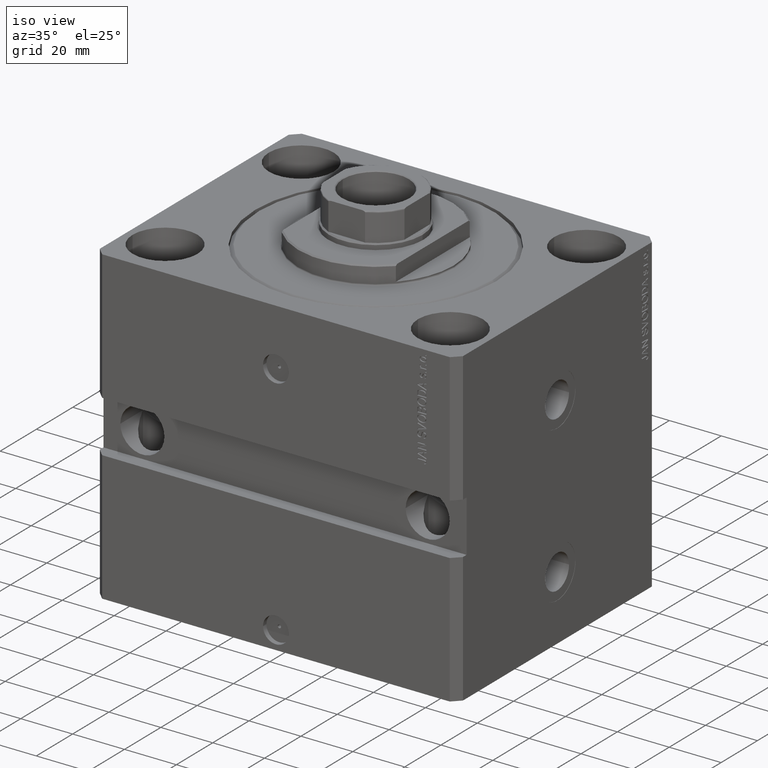
[diagram: clean part render]
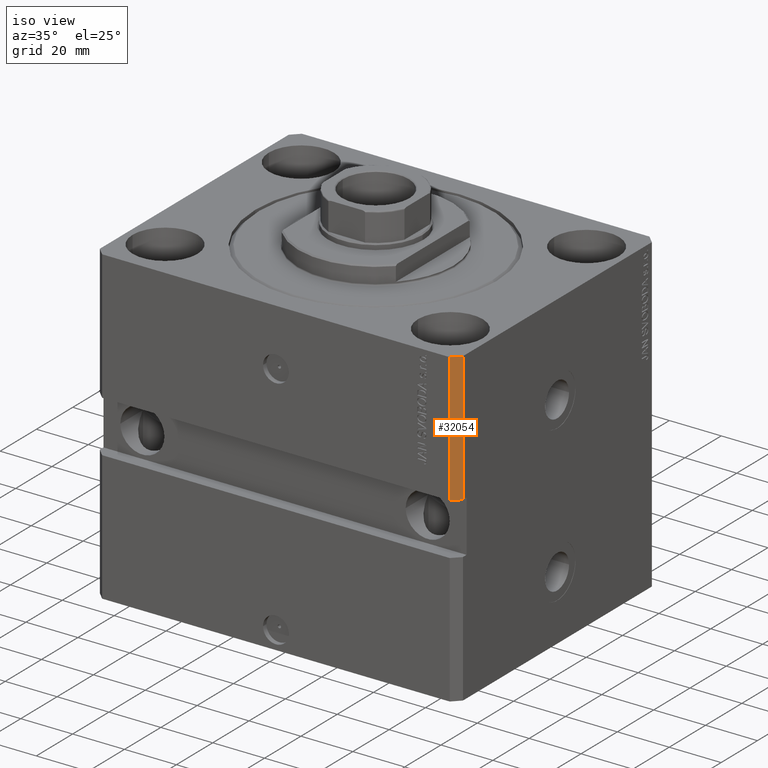
[diagram: same view with one face highlighted and labeled with its STEP entity id]
A machine part, iso view. The second image highlights one B-rep face of the part: STEP entity #32054.
In plain terms, the highlighted planar face has unit normal (0.7071, -0.7071, 0).
Its self-contained STEP definition (entity closure, byte-faithful):
#2365 = PLANE ( 'NONE',  #34489 ) ;
#4715 = VECTOR ( 'NONE', #29546, 1000.000000000000114 ) ;
#9105 = ORIENTED_EDGE ( 'NONE', *, *, #18165, .F. ) ;
#10730 = VERTEX_POINT ( 'NONE', #40693 ) ;
#10846 = LINE ( 'NONE', #29843, #30945 ) ;
#11077 = FACE_OUTER_BOUND ( 'NONE', #18109, .T. ) ;
#11285 = VECTOR ( 'NONE', #19851, 1000.000000000000114 ) ;
#12496 = VERTEX_POINT ( 'NONE', #36769 ) ;
#14295 = ORIENTED_EDGE ( 'NONE', *, *, #44638, .F. ) ;
#14319 = LINE ( 'NONE', #30049, #17408 ) ;
#15842 = LINE ( 'NONE', #34805, #11285 ) ;
#17408 = VECTOR ( 'NONE', #18585, 1000.000000000000000 ) ;
#18109 = EDGE_LOOP ( 'NONE', ( #30597, #41370, #14295, #9105 ) ) ;
#18165 = EDGE_CURVE ( 'NONE', #12496, #31955, #14319, .T. ) ;
#18585 = DIRECTION ( 'NONE',  ( 0.000000000000000000, 0.000000000000000000, 1.000000000000000000 ) ) ;
#18804 = LINE ( 'NONE', #34004, #4715 ) ;
#19851 = DIRECTION ( 'NONE',  ( 0.7071067811865474617, 0.7071067811865474617, 0.000000000000000000 ) ) ;
#21834 = EDGE_CURVE ( 'NONE', #10730, #38330, #10846, .T. ) ;
#25620 = DIRECTION ( 'NONE',  ( 0.000000000000000000, 0.000000000000000000, 1.000000000000000000 ) ) ;
#28476 = CARTESIAN_POINT ( 'NONE',  ( 70.00000000000000000, -51.99999999999999289, 0.000000000000000000 ) ) ;
#28840 = CARTESIAN_POINT ( 'NONE',  ( 67.00000000000001421, -54.99999999999997868, 0.000000000000000000 ) ) ;
#29546 = DIRECTION ( 'NONE',  ( -0.7071067811865474617, -0.7071067811865474617, -2.102802400022912892E-16 ) ) ;
#29843 = CARTESIAN_POINT ( 'NONE',  ( 70.00000000000000000, -51.99999999999999289, -120.0000000000000000 ) ) ;
#30049 = CARTESIAN_POINT ( 'NONE',  ( 67.00000000000001421, -54.99999999999997868, -120.0000000000000000 ) ) ;
#30597 = ORIENTED_EDGE ( 'NONE', *, *, #37476, .F. ) ;
#30945 = VECTOR ( 'NONE', #25620, 1000.000000000000000 ) ;
#31955 = VERTEX_POINT ( 'NONE', #28840 ) ;
#32054 = ADVANCED_FACE ( 'NONE', ( #11077 ), #2365, .T. ) ;
#33809 = DIRECTION ( 'NONE',  ( 0.7071067811865474617, 0.7071067811865474617, 0.000000000000000000 ) ) ;
#34004 = CARTESIAN_POINT ( 'NONE',  ( 67.00000000000000000, -54.99999999999999289, -49.99999999999996447 ) ) ;
#34489 = AXIS2_PLACEMENT_3D ( 'NONE', #44286, #41278, #33809 ) ;
#34805 = CARTESIAN_POINT ( 'NONE',  ( 67.00000000000001421, -54.99999999999997868, 0.000000000000000000 ) ) ;
#36769 = CARTESIAN_POINT ( 'NONE',  ( 67.00000000000001421, -54.99999999999997868, -49.99999999999996447 ) ) ;
#37476 = EDGE_CURVE ( 'NONE', #10730, #12496, #18804, .T. ) ;
#38330 = VERTEX_POINT ( 'NONE', #28476 ) ;
#40693 = CARTESIAN_POINT ( 'NONE',  ( 70.00000000000001421, -51.99999999999997868, -49.99999999999996447 ) ) ;
#41278 = DIRECTION ( 'NONE',  ( 0.7071067811865475727, -0.7071067811865475727, 0.000000000000000000 ) ) ;
#41370 = ORIENTED_EDGE ( 'NONE', *, *, #21834, .T. ) ;
#44286 = CARTESIAN_POINT ( 'NONE',  ( 67.00000000000001421, -54.99999999999997868, -120.0000000000000000 ) ) ;
#44638 = EDGE_CURVE ( 'NONE', #31955, #38330, #15842, .T. ) ;